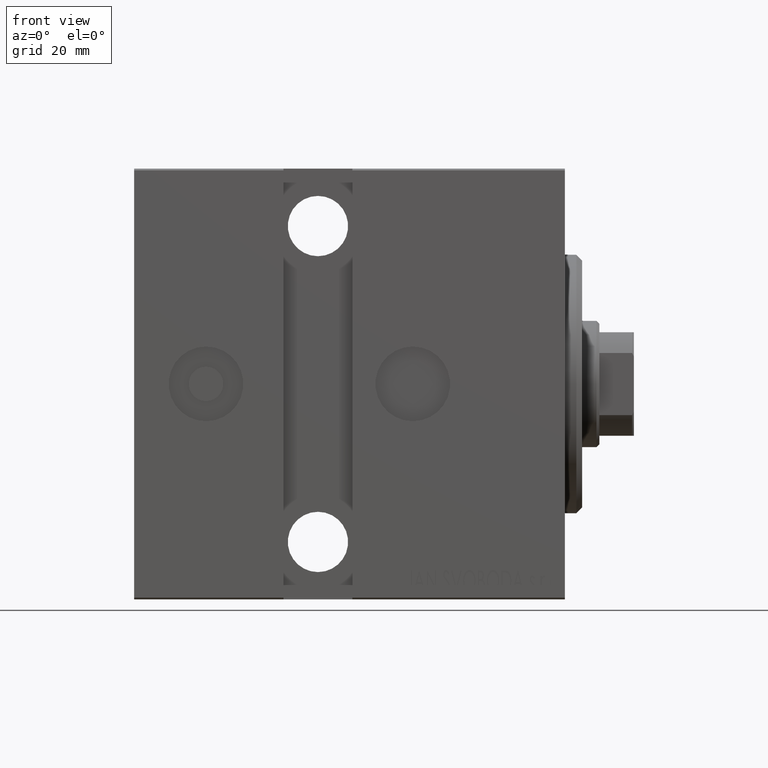
[diagram: clean part render]
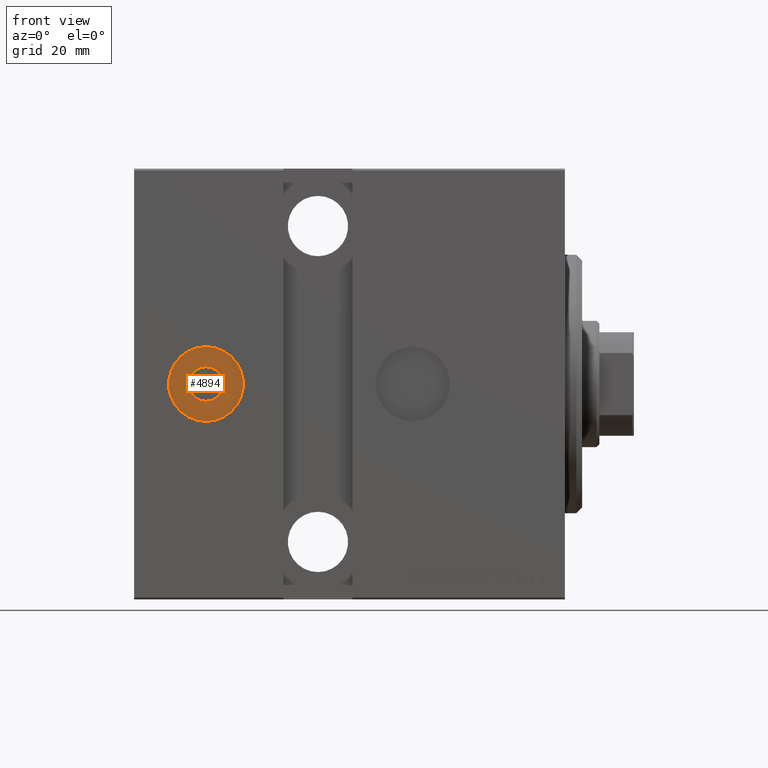
[diagram: same view with one face highlighted and labeled with its STEP entity id]
A machine part, front view. The second image highlights one B-rep face of the part: STEP entity #4894.
In plain terms, the highlighted planar face has unit normal (-0, -1, 0).
Its self-contained STEP definition (entity closure, byte-faithful):
#335 = CIRCLE ( 'NONE', #9228, 6.499999999999994671 ) ;
#1117 = ORIENTED_EDGE ( 'NONE', *, *, #9329, .F. ) ;
#1231 = DIRECTION ( 'NONE',  ( 6.162975822039154730E-33, 1.000000000000000000, 8.767205616560546857E-17 ) ) ;
#1298 = EDGE_CURVE ( 'NONE', #35541, #6049, #15248, .T. ) ;
#2955 = DIRECTION ( 'NONE',  ( 0.000000000000000000, 0.000000000000000000, 1.000000000000000000 ) ) ;
#3135 = FACE_OUTER_BOUND ( 'NONE', #18590, .T. ) ;
#3589 = CARTESIAN_POINT ( 'NONE',  ( 62.49999999999999289, 26.50000000000000000, 6.499999999999997335 ) ) ;
#3590 = DIRECTION ( 'NONE',  ( 6.162975822039154730E-33, 1.000000000000000000, 8.767205616560546857E-17 ) ) ;
#4894 = ADVANCED_FACE ( 'NONE', ( #16248, #3135 ), #29377, .T. ) ;
#5273 = ORIENTED_EDGE ( 'NONE', *, *, #13230, .T. ) ;
#5684 = DIRECTION ( 'NONE',  ( 0.000000000000000000, 0.000000000000000000, 1.000000000000000000 ) ) ;
#6049 = VERTEX_POINT ( 'NONE', #20901 ) ;
#7959 = CIRCLE ( 'NONE', #8653, 3.000000000000000444 ) ;
#8451 = DIRECTION ( 'NONE',  ( 0.000000000000000000, 0.000000000000000000, 1.000000000000000000 ) ) ;
#8466 = CIRCLE ( 'NONE', #20818, 3.000000000000000444 ) ;
#8653 = AXIS2_PLACEMENT_3D ( 'NONE', #39497, #3590, #2955 ) ;
#9020 = EDGE_LOOP ( 'NONE', ( #1117, #10001 ) ) ;
#9228 = AXIS2_PLACEMENT_3D ( 'NONE', #34323, #1231, #5684 ) ;
#9329 = EDGE_CURVE ( 'NONE', #24163, #15406, #8466, .T. ) ;
#10001 = ORIENTED_EDGE ( 'NONE', *, *, #15940, .F. ) ;
#13230 = EDGE_CURVE ( 'NONE', #6049, #35541, #335, .T. ) ;
#15248 = CIRCLE ( 'NONE', #36508, 6.499999999999994671 ) ;
#15406 = VERTEX_POINT ( 'NONE', #23981 ) ;
#15940 = EDGE_CURVE ( 'NONE', #15406, #24163, #7959, .T. ) ;
#16248 = FACE_BOUND ( 'NONE', #9020, .T. ) ;
#17270 = CARTESIAN_POINT ( 'NONE',  ( 62.49999999999999289, 26.50000000000000000, 2.418099390755548984E-15 ) ) ;
#18590 = EDGE_LOOP ( 'NONE', ( #35544, #5273 ) ) ;
#20818 = AXIS2_PLACEMENT_3D ( 'NONE', #41333, #41555, #21141 ) ;
#20901 = CARTESIAN_POINT ( 'NONE',  ( 62.49999999999999289, 26.50000000000000000, -6.499999999999992006 ) ) ;
#21141 = DIRECTION ( 'NONE',  ( 0.000000000000000000, 0.000000000000000000, 1.000000000000000000 ) ) ;
#23981 = CARTESIAN_POINT ( 'NONE',  ( 62.49999999999999289, 26.50000000000000000, -2.999999999999997780 ) ) ;
#24163 = VERTEX_POINT ( 'NONE', #31807 ) ;
#25306 = DIRECTION ( 'NONE',  ( 6.162975822039154730E-33, 1.000000000000000000, 8.767205616560546857E-17 ) ) ;
#26243 = AXIS2_PLACEMENT_3D ( 'NONE', #32168, #25306, #35390 ) ;
#28238 = DIRECTION ( 'NONE',  ( 6.162975822039154730E-33, 1.000000000000000000, 8.767205616560546857E-17 ) ) ;
#29377 = PLANE ( 'NONE',  #26243 ) ;
#31807 = CARTESIAN_POINT ( 'NONE',  ( 62.49999999999999289, 26.50000000000000000, 3.000000000000003109 ) ) ;
#32168 = CARTESIAN_POINT ( 'NONE',  ( 1.694818351060767551E-31, 26.50000000000000000, 2.284819837210382684E-15 ) ) ;
#34323 = CARTESIAN_POINT ( 'NONE',  ( 62.49999999999999289, 26.50000000000000000, 2.418099390755548984E-15 ) ) ;
#35390 = DIRECTION ( 'NONE',  ( 0.000000000000000000, -8.767205616560546857E-17, 1.000000000000000000 ) ) ;
#35541 = VERTEX_POINT ( 'NONE', #3589 ) ;
#35544 = ORIENTED_EDGE ( 'NONE', *, *, #1298, .T. ) ;
#36508 = AXIS2_PLACEMENT_3D ( 'NONE', #17270, #28238, #8451 ) ;
#39497 = CARTESIAN_POINT ( 'NONE',  ( 62.49999999999999289, 26.50000000000000000, 2.418099390755548984E-15 ) ) ;
#41333 = CARTESIAN_POINT ( 'NONE',  ( 62.49999999999999289, 26.50000000000000000, 2.418099390755548984E-15 ) ) ;
#41555 = DIRECTION ( 'NONE',  ( 6.162975822039154730E-33, 1.000000000000000000, 8.767205616560546857E-17 ) ) ;